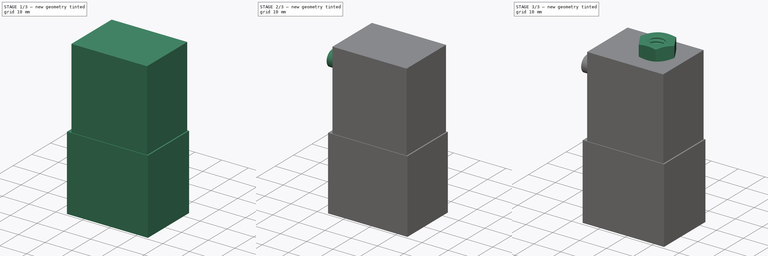
[diagram: build sequence overview — one tinted view per stage of 3, left to right]
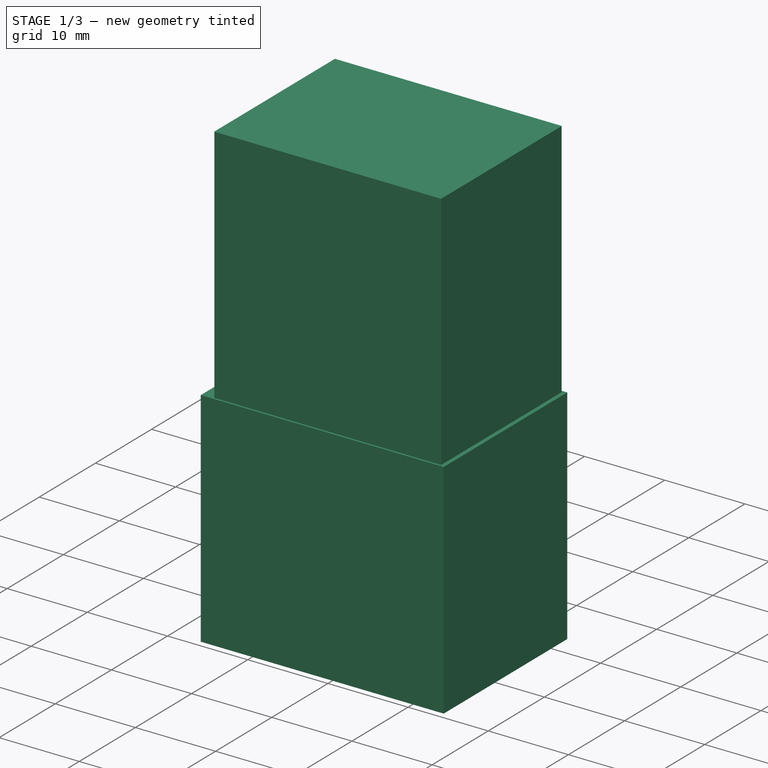
[diagram: stage 1 of 3 — iso view after this stage's code; geometry added in this stage tinted green]
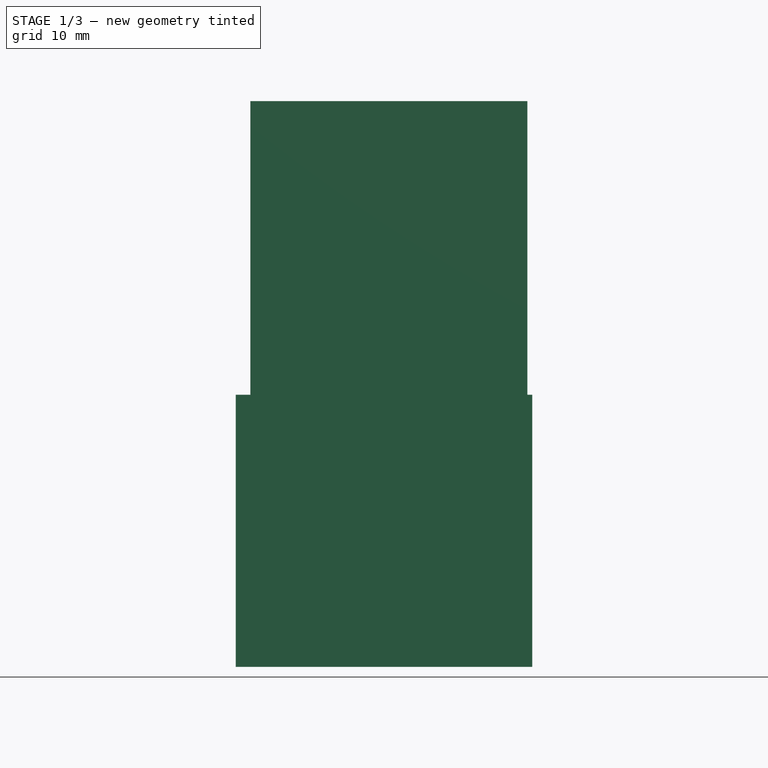
[diagram: stage 1 of 3 — front view after this stage's code; geometry added in this stage tinted green]
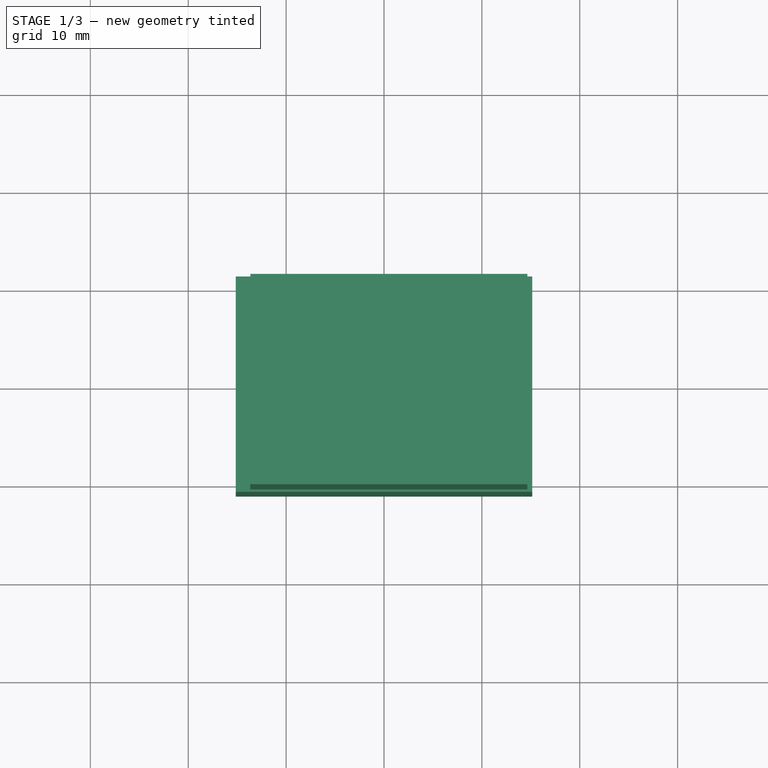
[diagram: stage 1 of 3 — top view after this stage's code; geometry added in this stage tinted green]
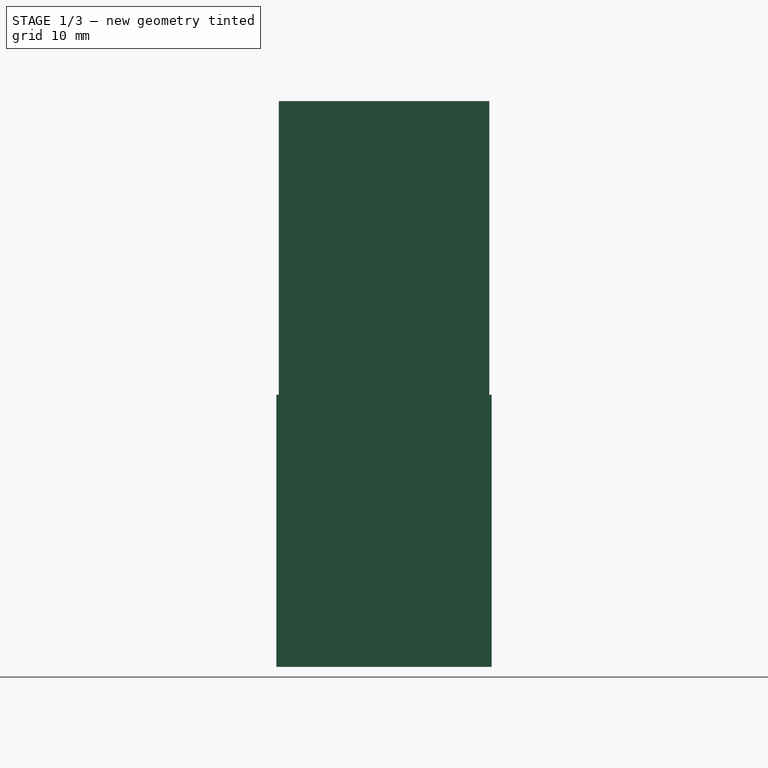
[diagram: stage 1 of 3 — right view after this stage's code; geometry added in this stage tinted green]
FCSTD DOCUMENT  (FreeCAD 0.22R36807 (Git))
Label: 12V DC 540mA Solenoid
License: Creative Commons Attribution 4.0
LicenseURL: https://creativecommons.org/licenses/by/4.0/
objects: Sketcher::SketchObject×5, PartDesign::Pad×3, Part::FeaturePython×2, PartDesign::ShapeBinder×2, PartDesign::Hole×1, PartDesign::Body×1
note: 18 computed .brp shape members not serialized (recipe doc carries the construction recipe); baked Part::Feature solids carry a one-line shape summary decoded from their .brp

FEATURE [Sketcher::SketchObject] Sketch
  AttachmentSupport = -> [XY_Plane]
  FullyConstrained = true
  MapMode = 5
  sketch-geometry (5):
    g0: LineSegment StartX=-15.15 StartY=-11 StartZ=0 EndX=15.15 EndY=-11 EndZ=0
    g1: LineSegment StartX=15.15 StartY=-11 StartZ=0 EndX=15.15 EndY=11 EndZ=0
    g2: LineSegment StartX=15.15 StartY=11 StartZ=0 EndX=-15.15 EndY=11 EndZ=0
    g3: LineSegment StartX=-15.15 StartY=11 StartZ=0 EndX=-15.15 EndY=-11 EndZ=0
    g4: GeomPoint X=0 Y=0 Z=0
  constraints (12):
    c: Coincident(g0,g1)
    c: Coincident(g1,g2)
    c: Coincident(g2,g3)
    c: Coincident(g3,g0)
    c: Horizontal(g0)
    c: Horizontal(g2)
    c: Vertical(g1)
    c: Vertical(g3)
    c: Symmetric(g2,g0,g4)
    c: Distance(g1,g3) = 30.3
    c: Distance(g0,g2) = 22
    c: Coincident(g4,g-1)
FEATURE [PartDesign::Pad] Pad
  Direction = (0,0,1)
  Length = 27.8
  Length2 = 10
  Profile = -> Sketch
  ReferenceAxis = -> Sketch [N_Axis]
  Suppressed = false
  Type = 0
FEATURE [Sketcher::SketchObject] Sketch001
  AttachmentSupport = -> [Pad]
  ExternalGeometry = -> [Sketch]
  FullyConstrained = false
  MapMode = 5
  Placement = pos=(0,0,27.8) rot=(0,0,1;0rad)
  sketch-geometry (10):
    g0: LineSegment StartX=-13.65 StartY=10.7137 StartZ=0 EndX=-13.65 EndY=-10.7137 EndZ=0
    g1: LineSegment StartX=-13.6137 StartY=-10.75 StartZ=0 EndX=14.6137 EndY=-10.75 EndZ=0
    g2: LineSegment StartX=14.65 StartY=-10.7137 StartZ=0 EndX=14.65 EndY=10.7137 EndZ=0
    g3: LineSegment StartX=14.6137 StartY=10.75 StartZ=0 EndX=-13.6137 EndY=10.75 EndZ=0
    g4: ArcOfCircle CenterX=-13.6137 CenterY=10.7137 CenterZ=0 NormalX=0 NormalY=0 NormalZ=1 AngleXU=0 Radius=0.0362825 StartAngle=1.5708 EndAngle=3.14159
    g5: ArcOfCircle CenterX=-13.6137 CenterY=-10.7137 CenterZ=0 NormalX=0 NormalY=0 NormalZ=1 AngleXU=0 Radius=0.0362825 StartAngle=3.14159 EndAngle=4.71239
    g6: ArcOfCircle CenterX=14.6137 CenterY=-10.7137 CenterZ=0 NormalX=0 NormalY=0 NormalZ=1 AngleXU=0 Radius=0.0362825 StartAngle=4.71239 EndAngle=6.28319
    g7: ArcOfCircle CenterX=14.6137 CenterY=10.7137 CenterZ=0 NormalX=0 NormalY=0 NormalZ=1 AngleXU=0 Radius=0.0362825 StartAngle=-5.3e-15 EndAngle=1.5708
    g8: GeomPoint X=-13.65 Y=10.75 Z=0
    g9: GeomPoint X=14.65 Y=-10.75 Z=0
  constraints (22):
    c: Tangent(g0,g4) = -1.5708
    c: Tangent(g0,g5) = -1.5708
    c: Tangent(g1,g5) = -1.5708
    c: Tangent(g1,g6) = -1.5708
    c: Tangent(g2,g6) = -1.5708
    c: Tangent(g2,g7) = -1.5708
    c: Tangent(g3,g7) = -1.5708
    c: Tangent(g3,g4) = -1.5708
    c: Vertical(g0)
    c: Vertical(g2)
    c: Horizontal(g1)
    c: Horizontal(g3)
    c: Equal(g5,g6)
    c: Equal(g6,g7)
    c: PointOnObject(g8,g0)
    c: PointOnObject(g8,g3)
    c: PointOnObject(g9,g1)
    c: PointOnObject(g9,g2)
    c: Distance(g0,g2) = 28.3
    c: Distance(g1,g3) = 21.5
    c: Symmetric(g5,g4,g-1)
    c: DistanceX(g2,g-4) = 0.5
FEATURE [PartDesign::Pad] Pad001
  BaseFeature = -> Pad
  Direction = (0,0,1)
  Length = 30
  Length2 = 10
  Profile = -> Sketch001
  ReferenceAxis = -> Sketch001 [N_Axis]
  Suppressed = false
  Type = 0
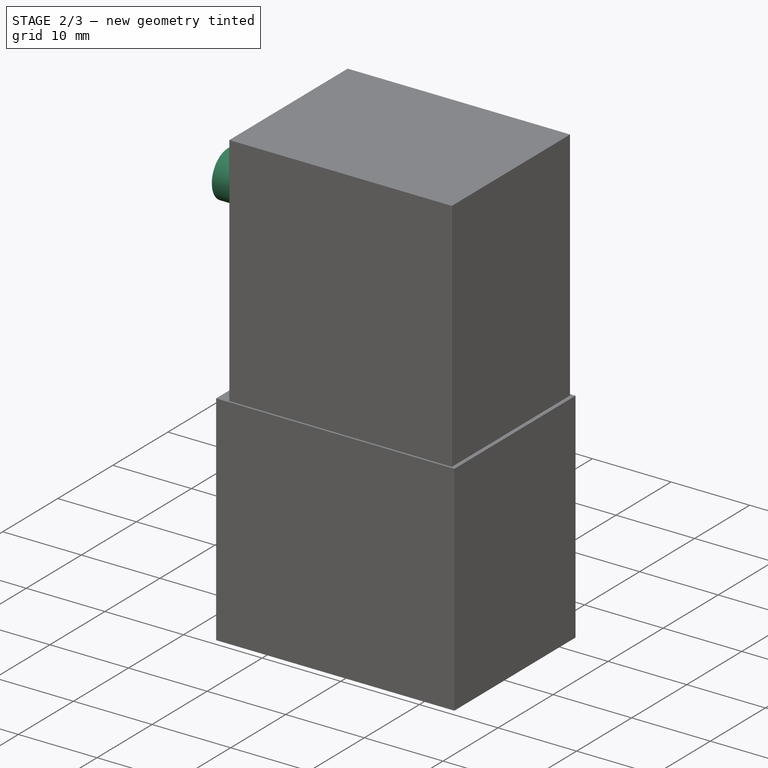
[diagram: stage 2 of 3 — iso view after this stage's code; geometry added in this stage tinted green]
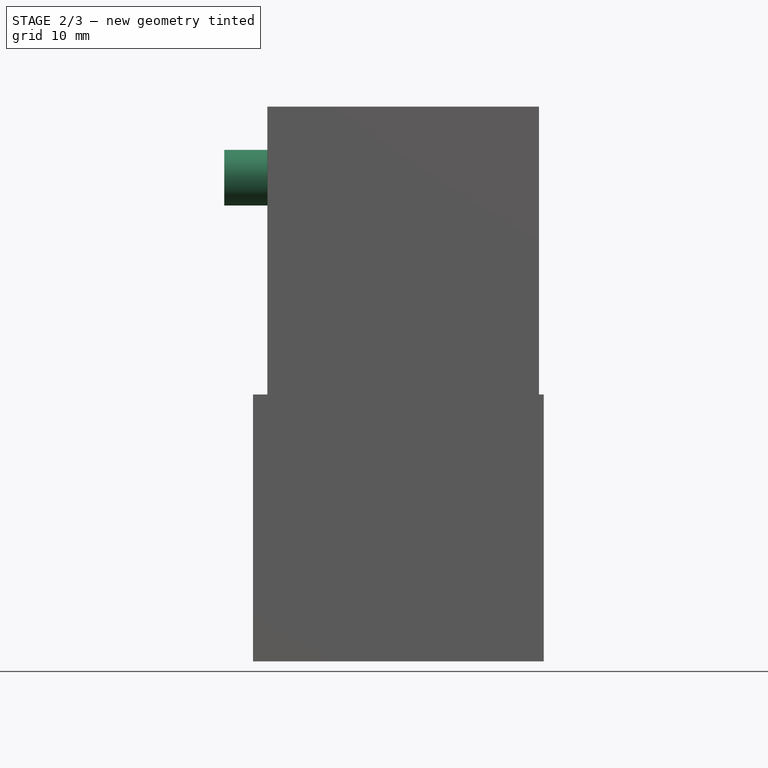
[diagram: stage 2 of 3 — front view after this stage's code; geometry added in this stage tinted green]
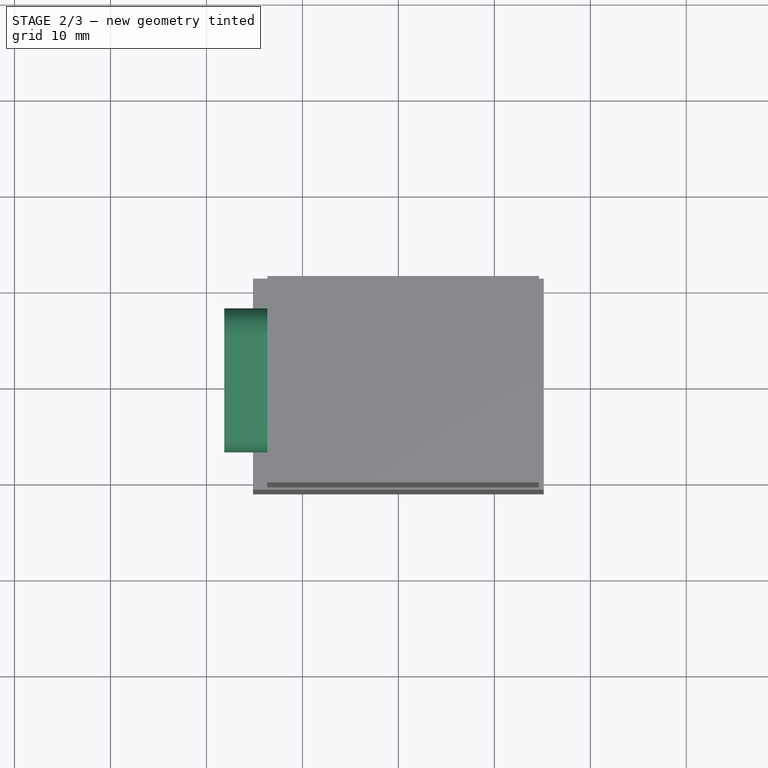
[diagram: stage 2 of 3 — top view after this stage's code; geometry added in this stage tinted green]
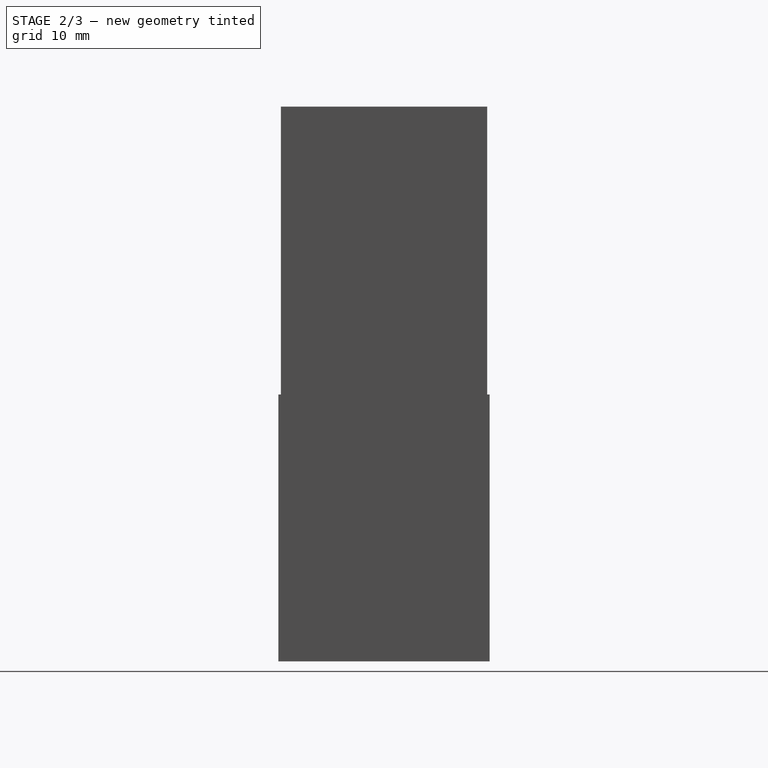
[diagram: stage 2 of 3 — right view after this stage's code; geometry added in this stage tinted green]
FEATURE [PartDesign::ShapeBinder] ShapeBinder001  label="NutShapeBinder"
  Placement = pos=(5,0,58) rot=(0,0,1;0rad)
  Support = -> [Nut]
  TraceSupport = false
FEATURE [Sketcher::SketchObject] Sketch003
  AttachmentSupport = -> [Pad001]
  ExternalGeometry = -> [Sketch002]
  FullyConstrained = true
  MapMode = 5
  Placement = pos=(-13.65,0,0) rot=(0.57735,-0.57735,-0.57735;2.0944rad)
  sketch-geometry (10):
    g0: LineSegment StartX=-7.5 StartY=50.4 StartZ=0 EndX=-7.5 EndY=50.4 EndZ=0
    g1: LineSegment StartX=-4.6 StartY=47.5 StartZ=0 EndX=4.6 EndY=47.5 EndZ=0
    g2: LineSegment StartX=7.5 StartY=50.4 StartZ=0 EndX=7.5 EndY=50.4 EndZ=0
    g3: LineSegment StartX=4.6 StartY=53.3 StartZ=0 EndX=-4.6 EndY=53.3 EndZ=0
    g4: ArcOfCircle CenterX=-4.6 CenterY=50.4 CenterZ=0 NormalX=0 NormalY=0 NormalZ=1 AngleXU=0 Radius=2.9 StartAngle=1.5708 EndAngle=3.14159
    g5: ArcOfCircle CenterX=-4.6 CenterY=50.4 CenterZ=0 NormalX=0 NormalY=0 NormalZ=1 AngleXU=0 Radius=2.9 StartAngle=3.14159 EndAngle=4.71239
    g6: ArcOfCircle CenterX=4.6 CenterY=50.4 CenterZ=0 NormalX=0 NormalY=0 NormalZ=1 AngleXU=0 Radius=2.9 StartAngle=4.71239 EndAngle=6.28319
    g7: ArcOfCircle CenterX=4.6 CenterY=50.4 CenterZ=0 NormalX=0 NormalY=0 NormalZ=1 AngleXU=0 Radius=2.9 StartAngle=1.60887e-11 EndAngle=1.5708
    g8: GeomPoint X=-7.5 Y=53.3 Z=0
    g9: GeomPoint X=7.5 Y=47.5 Z=0
  constraints (23):
    c: Tangent(g0,g4) = -1.5708
    c: Tangent(g0,g5) = -1.5708
    c: Tangent(g1,g5) = -1.5708
    c: Tangent(g1,g6) = -1.5708
    c: Tangent(g2,g6) = -1.5708
    c: Tangent(g2,g7) = -1.5708
    c: Tangent(g3,g7) = -1.5708
    c: Tangent(g3,g4) = -1.5708
    c: Vertical(g0)
    c: Vertical(g2)
    c: Horizontal(g1)
    c: Horizontal(g3)
    c: Equal(g4,g5)
    c: Equal(g5,g6)
    c: Equal(g6,g7)
    c: PointOnObject(g8,g0)
    c: PointOnObject(g8,g3)
    c: PointOnObject(g9,g1)
    c: PointOnObject(g9,g2)
    c: Distance(g0,g2) = 15
    c: Distance(g1,g3) = 5.8
    c: DistanceY(g3,g-3) = 4.5
    c: Symmetric(g4,g6,g-2)
FEATURE [PartDesign::Pad] Pad002
  BaseFeature = -> Pad001
  Direction = (-1,0,0)
  Length = 4.5
  Length2 = 10
  Profile = -> Sketch003
  ReferenceAxis = -> Sketch003 [N_Axis]
  Suppressed = false
  Type = 0
FEATURE [Sketcher::SketchObject] Sketch004
  AttachmentSupport = -> [Pad002]
  ExternalGeometry = -> [Sketch]
  FullyConstrained = true
  MapMode = 5
  Placement = pos=(0,0,0) rot=(1,0,0;3.14159rad)
  sketch-geometry (2):
    g0: Circle CenterX=-10.65 CenterY=7.25 CenterZ=0 NormalX=0 NormalY=0 NormalZ=1 AngleXU=0 Radius=1.7
    g1: Circle CenterX=-10.65 CenterY=-7.25 CenterZ=0 NormalX=0 NormalY=0 NormalZ=1 AngleXU=0 Radius=1.7
  constraints (5):
    c: Radius(g0) = 1.7
    c: Equal(g0,g1)
    c: Symmetric(g0,g1,g-1)
    c: DistanceY(g1,g0) = 14.5
    c: DistanceX(g-3,g0) = 4.5
FEATURE [PartDesign::Hole] Hole
  BaseFeature = -> Pad002
  CustomThreadClearance = 0
  Depth = 25
  DepthType = 0
  Diameter = 3.322
  DrillForDepth = false
  DrillPoint = 1
  DrillPointAngle = 118
  HoleCutCountersinkAngle = 90
  HoleCutCustomValues = false
  HoleCutDepth = 0
  HoleCutDiameter = 6.1
  HoleCutType = 0
  ModelThread = true
  Profile = -> Sketch004
  Suppressed = false
  Tapered = false
  TaperedAngle = 90
  ThreadClass = 0
  ThreadDepth = 25
  ThreadDepthType = 0
  ThreadDirection = 0
  ThreadFit = 0
  ThreadSize = 11
  ThreadType = 1
  Threaded = true
  UseCustomThreadClearance = false
FEATURE [PartDesign::Body] Body
  Group = -> [Sketch,Pad,Sketch001,Pad001,Sketch002,ShapeBinder,ShapeBinder001,Sketch003,Pad002,Sketch004,Hole]
  Origin = -> Origin
  Tip = -> Hole
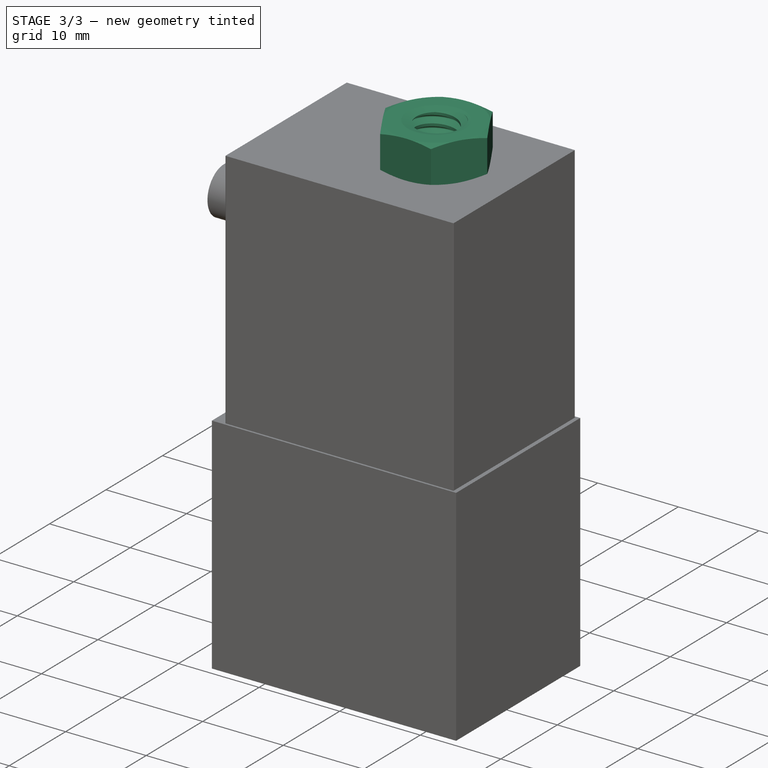
[diagram: stage 3 of 3 — iso view after this stage's code; geometry added in this stage tinted green]
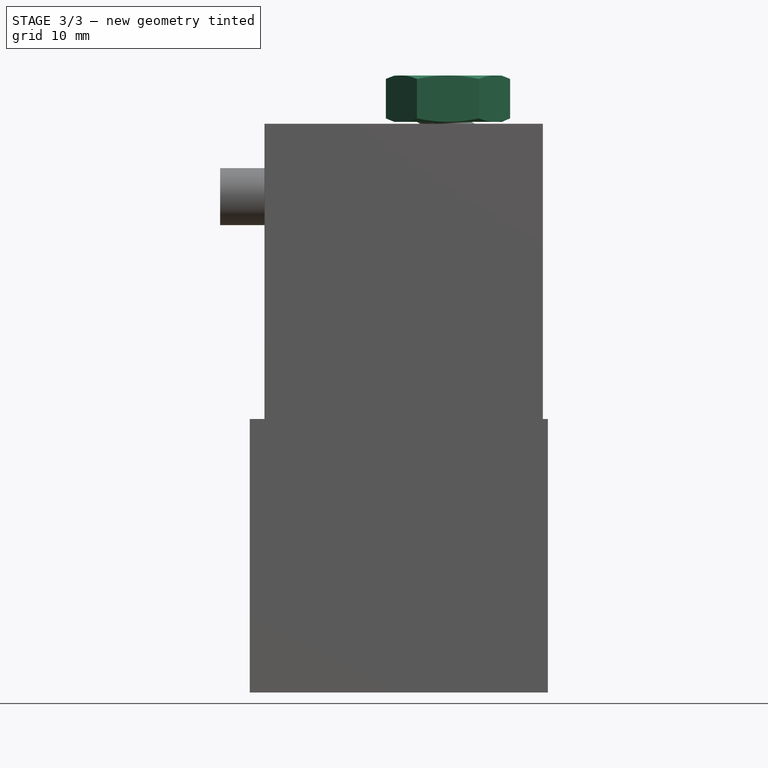
[diagram: stage 3 of 3 — front view after this stage's code; geometry added in this stage tinted green]
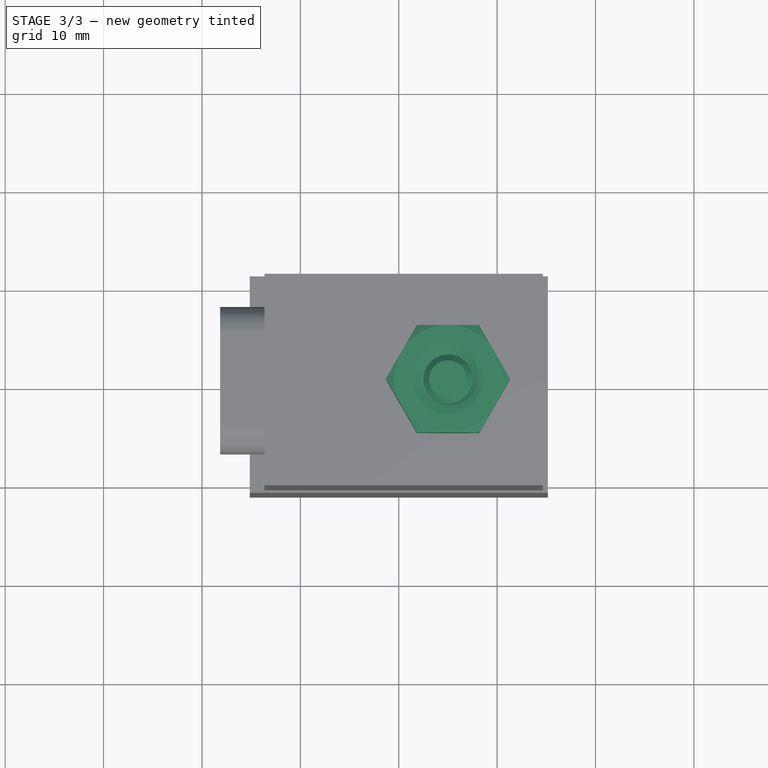
[diagram: stage 3 of 3 — top view after this stage's code; geometry added in this stage tinted green]
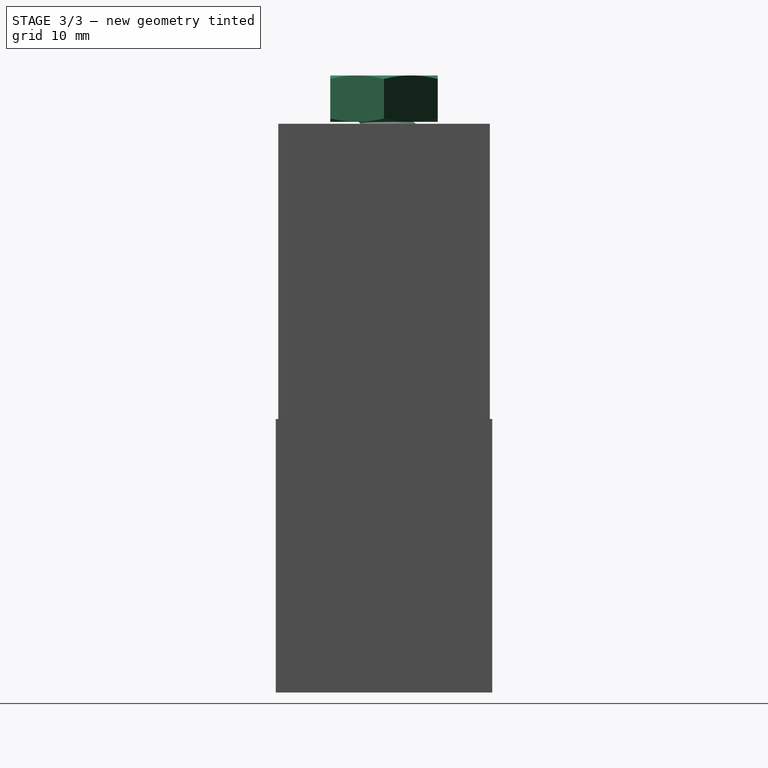
[diagram: stage 3 of 3 — right view after this stage's code; geometry added in this stage tinted green]
FEATURE [Sketcher::SketchObject] Sketch002
  AttachmentSupport = -> [Pad001]
  ExternalGeometry = -> [Sketch]
  FullyConstrained = true
  MapMode = 5
  Placement = pos=(0,0,57.8) rot=(0,0,1;0rad)
  sketch-geometry (1):
    g0: Circle CenterX=4.95 CenterY=0 CenterZ=0 NormalX=0 NormalY=0 NormalZ=1 AngleXU=0 Radius=3.3
  constraints (3):
    c: Radius(g0) = 3.3
    c: PointOnObject(g0,g-1)
    c: DistanceX(g0,g-3) = 10.2
FEATURE [Part::FeaturePython] ThreadedRod  label="1/4inx3.5-ThreadedRod"  # Fasteners workbench fastener (typed FeaturePython)
  Placement = pos=(5,0,60) rot=(0,0,1;0rad)
  diameter = 10
  diameterCustom = 6
  invert = false
  leftHanded = false
  length = 3.5
  matchOuter = false
  offset = 0
  pitchCustom = 1
  thread = true
  type = 5
FEATURE [PartDesign::ShapeBinder] ShapeBinder  label="ThreadedRodShapeBinder"
  Placement = pos=(5,0,60) rot=(0,0,1;0rad)
  Support = -> [ThreadedRod]
  TraceSupport = false
FEATURE [Part::FeaturePython] Nut  label="1/4in-Nut"  # Fasteners workbench fastener (typed FeaturePython)
  Placement = pos=(5,0,58) rot=(0,0,1;0rad)
  diameter = 11
  invert = false
  leftHanded = false
  matchOuter = false
  offset = 0
  thread = true
  type = 2
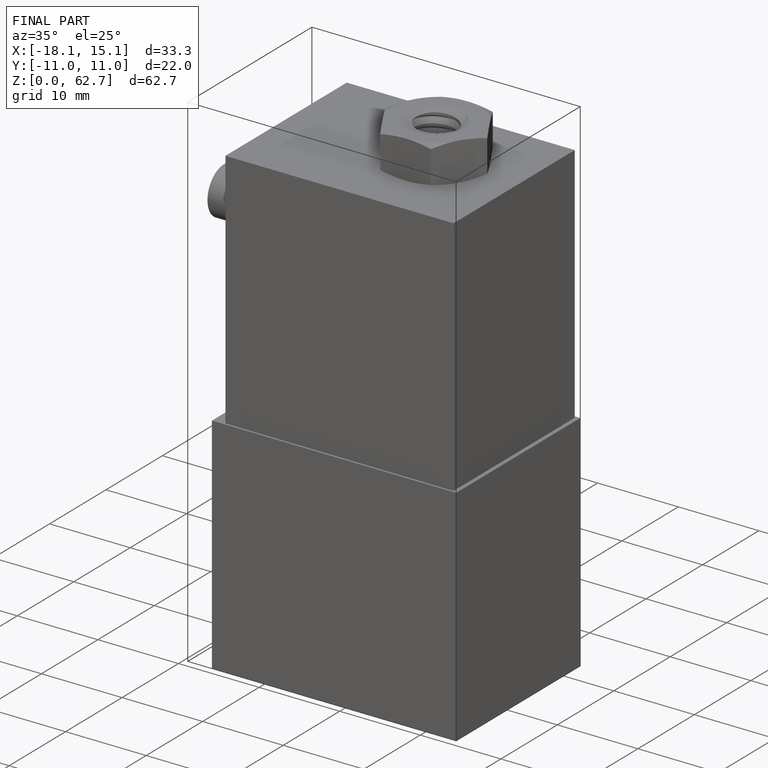
[diagram: finished part — iso view with bounding-box wireframe]
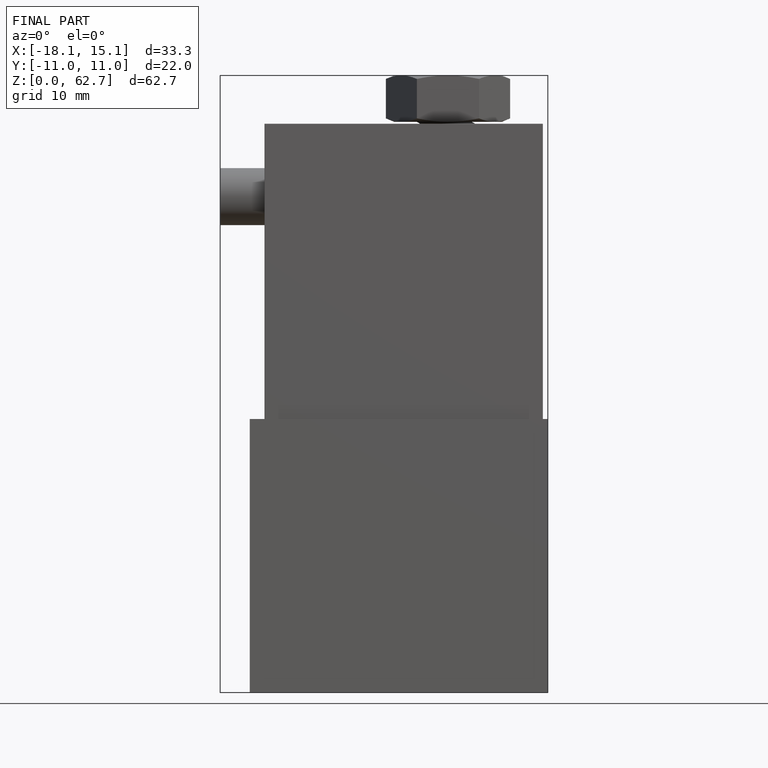
[diagram: finished part — front view with bounding-box wireframe]
